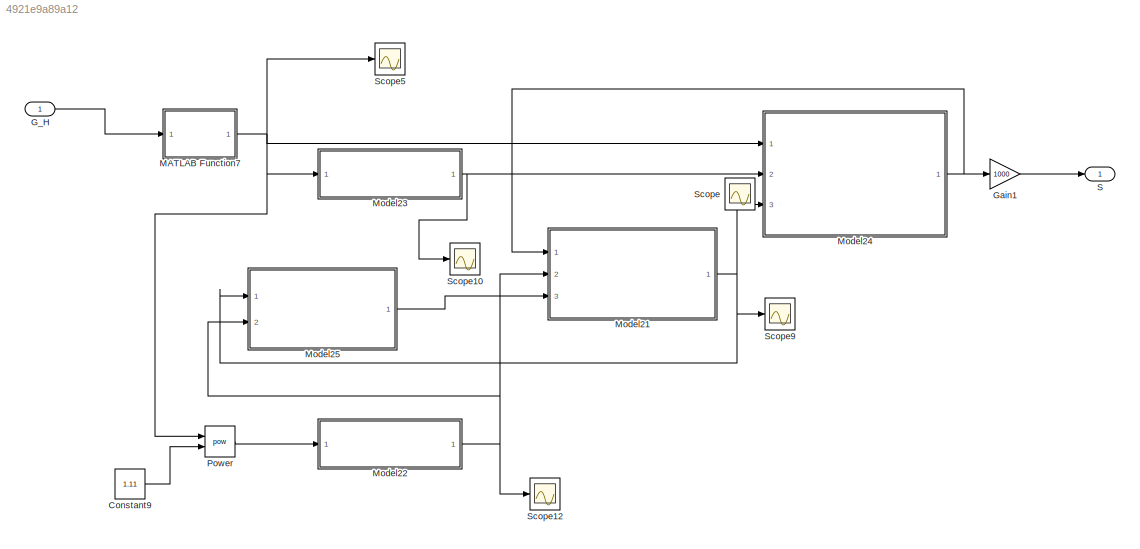
MODEL slx_4921e9a89a12
KIND model
CONFIG AbsTol = auto
CONFIG EnableMultiTasking = off
CONFIG FixedStep = auto
CONFIG MaxStep = auto
CONFIG MinStep = auto
CONFIG RelTol = 1e-3
CONFIG SampleTimeConstraint = Unconstrained
CONFIG Solver = VariableStepAuto
CONFIG SolverName = VariableStepAuto
CONFIG StartTime = 0.0
CONFIG StopTime = 200
WORKSPACE source: MAT-file member
WORKSPACE K = 0.00794
BLOCK [Constant] Constant9
  Value = 1.11
BLOCK [Inport] G_H
  IconDisplay = Port number
BLOCK [Gain] Gain1
  Gain = 1000
  OutDataTypeStr = Inherit: Inherit via internal rule
  ParamDataTypeStr = Inherit: Inherit via internal rule
  SaturateOnIntegerOverflow = off
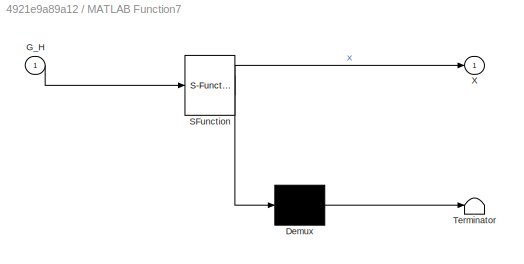
BLOCK [SubSystem] MATLAB Function7
  ErrorFcn = Stateflow.Translate.translate
  PermitHierarchicalResolution = ExplicitOnly
  Ports = [1, 1]
  RequestExecContextInheritance = off
  SFBlockType = MATLAB Function
  TreatAsAtomicUnit = on
BLOCK [Demux] MATLAB Function7/ Demux 
  Outputs = 1
  Ports = [1, 1]
BLOCK [S-Function] MATLAB Function7/ SFunction 
  EnableBusSupport = on
  FunctionName = sf_sfun
  PortCounts = [1 2]
  Ports = [1, 2]
  SFcnIsStateOwnerBlock = off
  SFunctionDeploymentMode = off
  Tag = Stateflow S-Function pancreas 8
BLOCK [Terminator] MATLAB Function7/ Terminator 
BLOCK [Inport] MATLAB Function7/G_H
  IconDisplay = Port number
BLOCK [Outport] MATLAB Function7/X
  IconDisplay = Port number
BLOCK [ModelReference] Model21
  ModelNameDialog = m_model
  ModelReferenceVersion = 1.10
  Ports = [3, 1]
BLOCK [ModelReference] Model22
  ModelNameDialog = P_model
  ModelReferenceVersion = 1.10
  Ports = [1, 1]
BLOCK [ModelReference] Model23
  ModelNameDialog = R_model.slx
  ModelReferenceVersion = 1.8
  Ports = [1, 1]
BLOCK [ModelReference] Model24
  ModelNameDialog = S_new
  ModelReferenceVersion = 1.4
  Ports = [3, 1]
BLOCK [ModelReference] Model25
  ModelNameDialog = ms_model
  ModelReferenceVersion = 1.8
  Ports = [2, 1]
BLOCK [Math] Power
  Operator = pow
  Ports = [2, 1]
BLOCK [Outport] S
  IconDisplay = Port number
  OutMin = 0
BLOCK [Scope] Scope
  Floating = off
  NumInputPorts = 1
  Ports = [1]
  ScopeSpecificationString = Simulink.scopes.TimeScopeBlockCfg('CurrentConfiguration', extmgr.ConfigurationSet(extmgr.Configuration('Core','General UI',true),extmgr.Configuration('Core','Source UI',true),extmgr.Configuration('Sources','WiredSimulink',true),extmgr.Configuration('Visuals','Time Domain',true,'SerializedDisplays',{struct('MinYLimReal','-0.0015','MaxYLimReal','0.01348','YLabelReal','','MinYLimMag','0.00000','MaxYL...<+1348ch>
BLOCK [Scope] Scope10
  Floating = off
  NumInputPorts = 1
  Ports = [1]
  ScopeSpecificationString = Simulink.scopes.TimeScopeBlockCfg('CurrentConfiguration', extmgr.ConfigurationSet(extmgr.Configuration('Core','General UI',true),extmgr.Configuration('Core','Source UI',true),extmgr.Configuration('Sources','WiredSimulink',true,'DataLoggingVariableName','ScopeData1'),extmgr.Configuration('Visuals','Time Domain',true,'SerializedDisplays',{struct('MinYLimReal','-0.04433','MaxYLimReal','0.39893','YLab...<+1442ch>
BLOCK [Scope] Scope12
  Floating = off
  NumInputPorts = 1
  Ports = [1]
  ScopeSpecificationString = Simulink.scopes.TimeScopeBlockCfg('CurrentConfiguration', extmgr.ConfigurationSet(extmgr.Configuration('Core','General UI',true),extmgr.Configuration('Core','Source UI',true),extmgr.Configuration('Sources','WiredSimulink',true,'DataLoggingVariableName','ScopeData2'),extmgr.Configuration('Visuals','Time Domain',true,'SerializedDisplays',{struct('MinYLimReal','-0.02548','MaxYLimReal','0.22933','YLab...<+1441ch>
BLOCK [Scope] Scope5
  Floating = off
  NumInputPorts = 1
  Ports = [1]
  ScopeSpecificationString = Simulink.scopes.TimeScopeBlockCfg('CurrentConfiguration', extmgr.ConfigurationSet(extmgr.Configuration('Core','General UI',true),extmgr.Configuration('Core','Source UI',true),extmgr.Configuration('Sources','WiredSimulink',true,'DataLoggingVariableName','ScopeData3'),extmgr.Configuration('Visuals','Time Domain',true,'SerializedDisplays',{struct('MinYLimReal','-0.02132','MaxYLimReal','0.49374','YLab...<+1423ch>
BLOCK [Scope] Scope9
  Floating = off
  NumInputPorts = 1
  Ports = [1]
  ScopeSpecificationString = Simulink.scopes.TimeScopeBlockCfg('CurrentConfiguration', extmgr.ConfigurationSet(extmgr.Configuration('Core','General UI',true),extmgr.Configuration('Core','Source UI',true),extmgr.Configuration('Sources','WiredSimulink',true,'DataLoggingVariableName','ScopeData4'),extmgr.Configuration('Visuals','Time Domain',true,'SerializedDisplays',{struct('MinYLimReal','5.59684','MaxYLimReal','12.92843','YLab...<+1443ch>
LINE Constant9:1 -> Power:2
LINE G_H:1 -> MATLAB Function7:1
LINE Gain1:1 -> S:1
NET MATLAB Function7:1 -> Model23:1, Model24:1, Power:1, Scope5:1
NET Model21:1 -> Model24:3, Model25:1, Scope9:1
NET Model22:1 -> Model21:2, Model25:2, Scope12:1
NET Model23:1 -> Model24:2, Scope10:1
NET Model24:1 -> Gain1:1, Model21:1
LINE Model25:1 -> Model21:3
LINE Power:1 -> Model22:1
note: NET lines group one-source signal fan-out (src -> all destinations, sorted); 1:1 wires keep LINE
CHART MATLAB Function7 states=1 transitions=1
  STATE_LABEL 'eML_blk_kernel()'
  STATE_LABEL 'SCRIPT:\nfunction X = X_function(G_H)\n%X_FUNCTION Calculate X from G_H (glucose output of heart)\n%   Inputs: G_H (g)\n%   Outputs: X (glucose enhanced excitation factor)\nnum = G_H^3.27;\ndenom = (132^3.27 + 5.93*((G_H)^3.02));\nX = num/denom;\nend'
